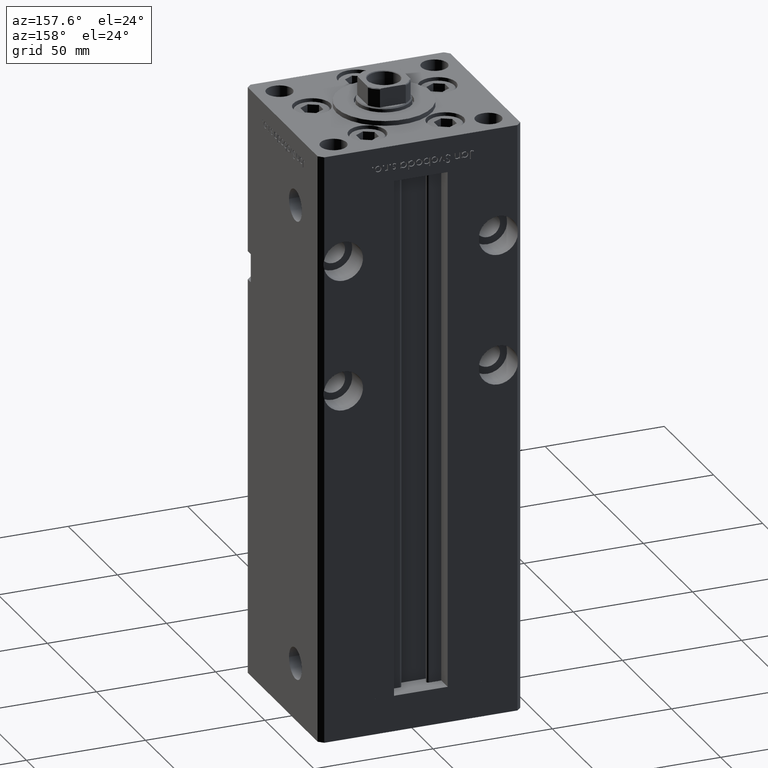
[diagram: clean part render]
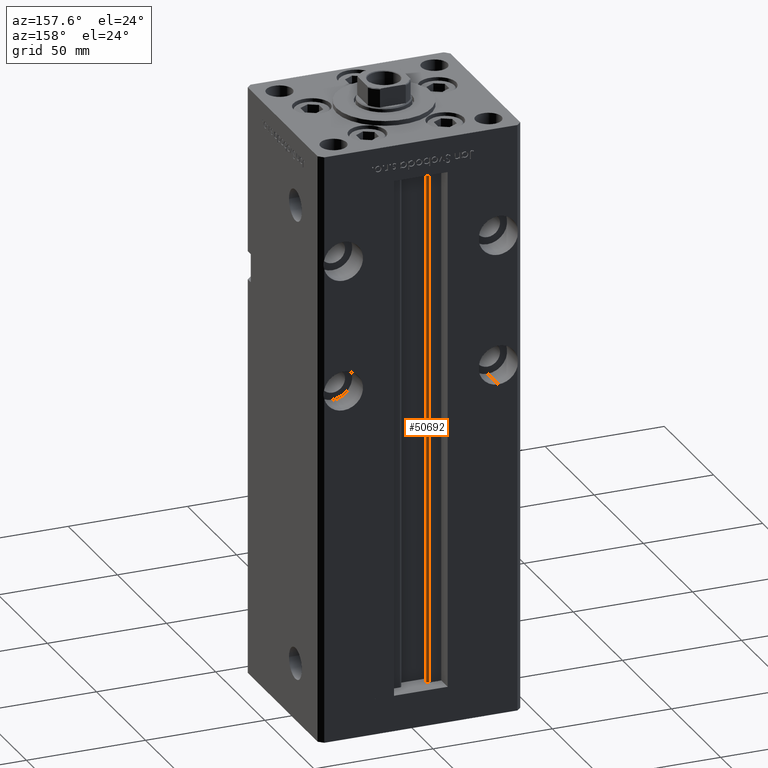
[diagram: same view with one face highlighted and labeled with its STEP entity id]
A machine part, auxiliary view. The second image highlights one B-rep face of the part: STEP entity #50692.
In plain terms, the highlighted cylindrical surface (edge-blend (fillet) strip) has radius 0.9333 mm, axis along (0, 0, 1).
Its self-contained STEP definition (entity closure, byte-faithful):
#59 = CARTESIAN_POINT ( 'NONE',  ( -6.183333333333997928, 31.00000000000000000, 218.5000000000000000 ) ) ;
#421 = CARTESIAN_POINT ( 'NONE',  ( -6.183333333333997928, 30.06666666666599852, 218.5000000000000000 ) ) ;
#689 = DIRECTION ( 'NONE',  ( 1.000000000000000000, 0.000000000000000000, 0.000000000000000000 ) ) ;
#1171 = AXIS2_PLACEMENT_3D ( 'NONE', #421, #8759, #689 ) ;
#1885 = LINE ( 'NONE', #46754, #22458 ) ;
#2655 = VERTEX_POINT ( 'NONE', #3981 ) ;
#3981 = CARTESIAN_POINT ( 'NONE',  ( -5.249999999999996447, 30.06666666666599852, 218.5000000000000000 ) ) ;
#5159 = AXIS2_PLACEMENT_3D ( 'NONE', #18536, #6471, #5676 ) ;
#5676 = DIRECTION ( 'NONE',  ( 1.000000000000000000, 0.000000000000000000, 0.000000000000000000 ) ) ;
#6241 = ORIENTED_EDGE ( 'NONE', *, *, #46209, .T. ) ;
#6471 = DIRECTION ( 'NONE',  ( -0.000000000000000000, -0.000000000000000000, -1.000000000000000000 ) ) ;
#6757 = EDGE_LOOP ( 'NONE', ( #50409, #42771, #52198, #6241 ) ) ;
#7263 = CARTESIAN_POINT ( 'NONE',  ( -5.249999999999996447, 30.06666666666599852, 0.000000000000000000 ) ) ;
#7536 = VERTEX_POINT ( 'NONE', #10525 ) ;
#8759 = DIRECTION ( 'NONE',  ( 0.000000000000000000, 0.000000000000000000, -1.000000000000000000 ) ) ;
#9957 = DIRECTION ( 'NONE',  ( -0.000000000000000000, -0.000000000000000000, 1.000000000000000000 ) ) ;
#10525 = CARTESIAN_POINT ( 'NONE',  ( -6.183333333333997928, 31.00000000000000000, 0.000000000000000000 ) ) ;
#12704 = CARTESIAN_POINT ( 'NONE',  ( -5.249999999999996447, 30.06666666666599852, 0.000000000000000000 ) ) ;
#16772 = VERTEX_POINT ( 'NONE', #7263 ) ;
#18326 = CIRCLE ( 'NONE', #1171, 0.9333333333340008142 ) ;
#18536 = CARTESIAN_POINT ( 'NONE',  ( -6.183333333333997928, 30.06666666666599852, 0.000000000000000000 ) ) ;
#21547 = EDGE_CURVE ( 'NONE', #7536, #16772, #28296, .T. ) ;
#22179 = VERTEX_POINT ( 'NONE', #59 ) ;
#22458 = VECTOR ( 'NONE', #9957, 1000.000000000000000 ) ;
#28296 = CIRCLE ( 'NONE', #5159, 0.9333333333340008142 ) ;
#30595 = FACE_OUTER_BOUND ( 'NONE', #6757, .T. ) ;
#31515 = EDGE_CURVE ( 'NONE', #7536, #22179, #1885, .T. ) ;
#33694 = VECTOR ( 'NONE', #50024, 1000.000000000000000 ) ;
#35685 = DIRECTION ( 'NONE',  ( -0.000000000000000000, -0.000000000000000000, 1.000000000000000000 ) ) ;
#39718 = CARTESIAN_POINT ( 'NONE',  ( -6.183333333333997928, 30.06666666666599852, 0.000000000000000000 ) ) ;
#42771 = ORIENTED_EDGE ( 'NONE', *, *, #21547, .F. ) ;
#42980 = EDGE_CURVE ( 'NONE', #16772, #2655, #45736, .T. ) ;
#45736 = LINE ( 'NONE', #12704, #33694 ) ;
#46209 = EDGE_CURVE ( 'NONE', #22179, #2655, #18326, .T. ) ;
#46754 = CARTESIAN_POINT ( 'NONE',  ( -6.183333333333997928, 31.00000000000000000, 0.000000000000000000 ) ) ;
#48045 = CYLINDRICAL_SURFACE ( 'NONE', #49249, 0.9333333333340008142 ) ;
#49249 = AXIS2_PLACEMENT_3D ( 'NONE', #39718, #35685, #52068 ) ;
#50024 = DIRECTION ( 'NONE',  ( -0.000000000000000000, -0.000000000000000000, 1.000000000000000000 ) ) ;
#50409 = ORIENTED_EDGE ( 'NONE', *, *, #42980, .F. ) ;
#50692 = ADVANCED_FACE ( 'NONE', ( #30595 ), #48045, .T. ) ;
#52068 = DIRECTION ( 'NONE',  ( 1.000000000000000000, 0.000000000000000000, 0.000000000000000000 ) ) ;
#52198 = ORIENTED_EDGE ( 'NONE', *, *, #31515, .T. ) ;